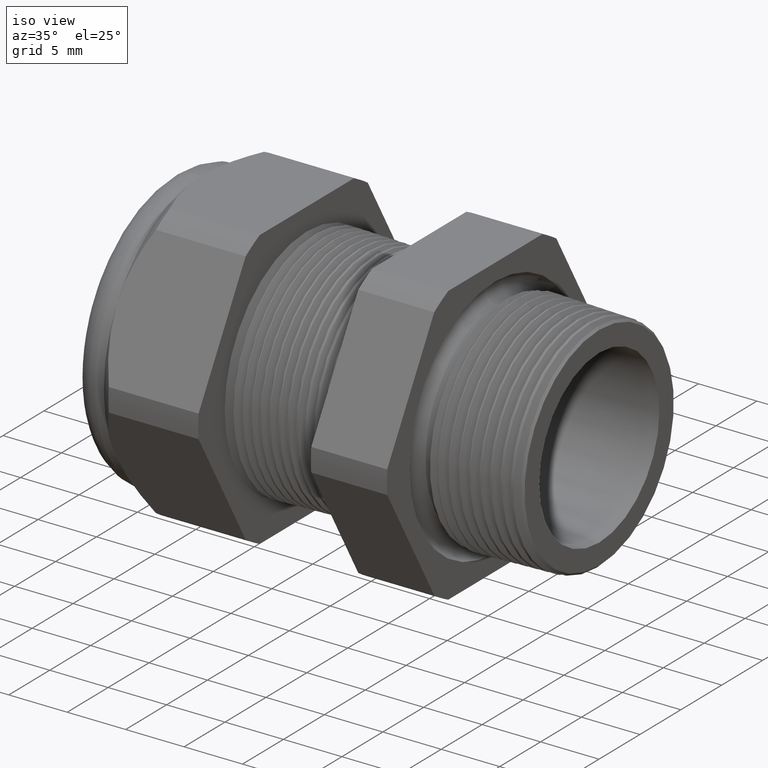
[diagram: clean part render]
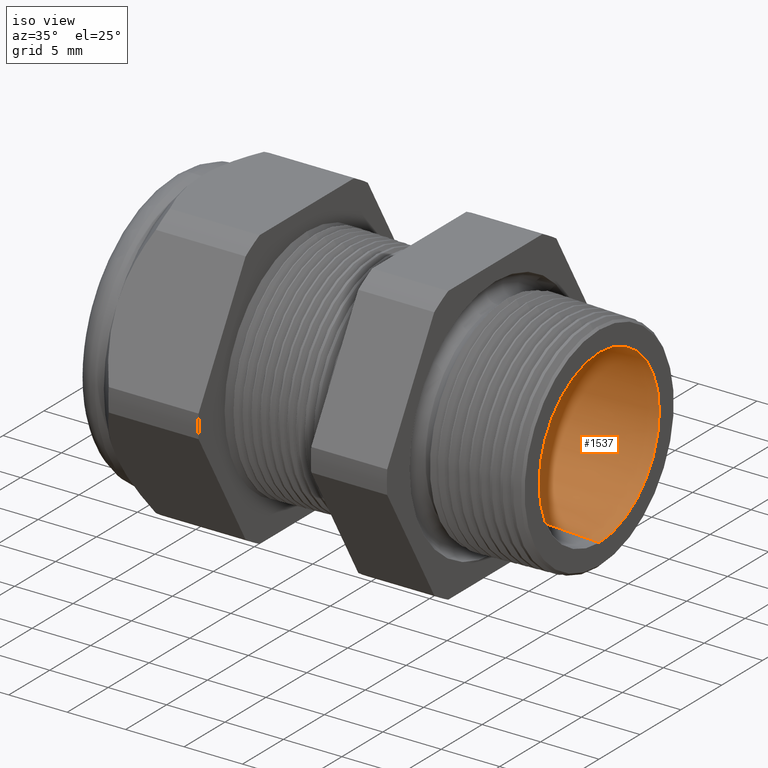
[diagram: same view with one face highlighted and labeled with its STEP entity id]
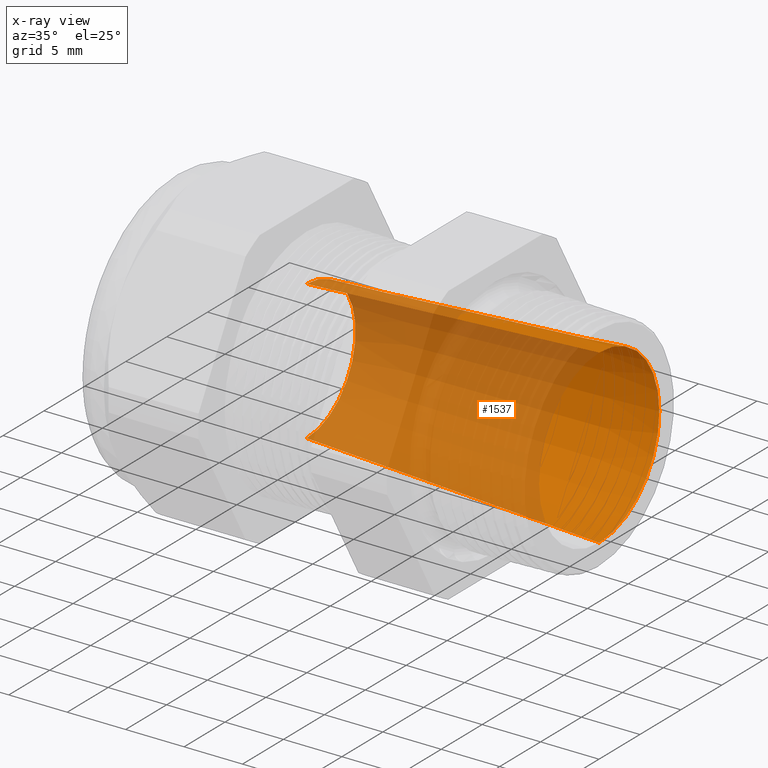
[diagram: x-ray of the same camera — body ghosted, the highlighted face saturated]
A machine part, iso view. The second image highlights one B-rep face of the part: STEP entity #1537.
The next image is the same camera in x-ray: the body ghosted, the highlighted face saturated — about 67% of this face is hidden behind the body in this view.
In plain terms, the highlighted conical surface has half-angle 3.148 deg.
Its self-contained STEP definition (entity closure, byte-faithful):
#979 = VERTEX_POINT ( 'NONE', #3498 ) ;
#980 = VERTEX_POINT ( 'NONE', #3497 ) ;
#982 = EDGE_CURVE ( 'NONE', #979, #983, #3496, .T. ) ;
#983 = VERTEX_POINT ( 'NONE', #3492 ) ;
#986 = VERTEX_POINT ( 'NONE', #3486 ) ;
#988 = EDGE_CURVE ( 'NONE', #980, #986, #3485, .T. ) ;
#1517 = ORIENTED_EDGE ( 'NONE', *, *, #1518, .T. ) ;
#1518 = EDGE_CURVE ( 'NONE', #986, #983, #4583, .T. ) ;
#1536 = EDGE_CURVE ( 'NONE', #980, #979, #4618, .T. ) ;
#1537 = ADVANCED_FACE ( 'NONE', ( #4614 ), #4613, .F. ) ;
#1538 = EDGE_LOOP ( 'NONE', ( #1539, #1540, #1541, #1517 ) ) ;
#1539 = ORIENTED_EDGE ( 'NONE', *, *, #982, .F. ) ;
#1540 = ORIENTED_EDGE ( 'NONE', *, *, #1536, .F. ) ;
#1541 = ORIENTED_EDGE ( 'NONE', *, *, #988, .T. ) ;
#3482 = DIRECTION ( 'NONE',  ( 0.9984911057575849300, 0.0000000000000000000, -0.05491367519111593100 ) ) ;
#3483 = VECTOR ( 'NONE', #3482, 39.37007874015748100 ) ;
#3484 = CARTESIAN_POINT ( 'NONE',  ( -0.9454330708661418100, 0.0000000000000000000, -0.2350000000000000100 ) ) ;
#3485 = LINE ( 'NONE', #3484, #3483 ) ;
#3486 = CARTESIAN_POINT ( 'NONE',  ( 0.03999999999999997300, 0.0000000000000000000, -0.2891955268946231900 ) ) ;
#3492 = CARTESIAN_POINT ( 'NONE',  ( 0.03999999999999997300, 3.541623763392326200E-017, 0.2891955268946231900 ) ) ;
#3493 = DIRECTION ( 'NONE',  ( 0.9984911057575849300, 6.724985655221754600E-018, 0.05491367519111593100 ) ) ;
#3494 = VECTOR ( 'NONE', #3493, 39.37007874015748100 ) ;
#3495 = CARTESIAN_POINT ( 'NONE',  ( -0.9454330708661418100, 2.877919977996280400E-017, 0.2350000000000000100 ) ) ;
#3496 = LINE ( 'NONE', #3495, #3494 ) ;
#3497 = CARTESIAN_POINT ( 'NONE',  ( -0.9454330708661418100, 0.0000000000000000000, -0.2350000000000000100 ) ) ;
#3498 = CARTESIAN_POINT ( 'NONE',  ( -0.9454330708661418100, 2.877919977996280400E-017, 0.2350000000000000100 ) ) ;
#4579 = DIRECTION ( 'NONE',  ( 0.0000000000000000000, 0.0000000000000000000, -1.000000000000000000 ) ) ;
#4580 = DIRECTION ( 'NONE',  ( 1.000000000000000000, 0.0000000000000000000, 0.0000000000000000000 ) ) ;
#4581 = CARTESIAN_POINT ( 'NONE',  ( 0.03999999999999997300, 0.0000000000000000000, 0.0000000000000000000 ) ) ;
#4582 = AXIS2_PLACEMENT_3D ( 'NONE', #4581, #4580, #4579 ) ;
#4583 = CIRCLE ( 'NONE', #4582, 0.2891955268946231900 ) ;
#4608 = DIRECTION ( 'NONE',  ( 0.0000000000000000000, 0.0000000000000000000, -1.000000000000000000 ) ) ;
#4609 = DIRECTION ( 'NONE',  ( 1.000000000000000000, 0.0000000000000000000, 0.0000000000000000000 ) ) ;
#4610 = CARTESIAN_POINT ( 'NONE',  ( -0.9454330708661418100, 0.0000000000000000000, 0.0000000000000000000 ) ) ;
#4611 = AXIS2_PLACEMENT_3D ( 'NONE', #4610, #4609, #4608 ) ;
#4613 = CONICAL_SURFACE ( 'NONE', #4611, 0.2350000000000000100, 0.05494131151472639300 ) ;
#4614 = FACE_OUTER_BOUND ( 'NONE', #1538, .T. ) ;
#4615 = DIRECTION ( 'NONE',  ( 0.0000000000000000000, 0.0000000000000000000, -1.000000000000000000 ) ) ;
#4616 = DIRECTION ( 'NONE',  ( 1.000000000000000000, 0.0000000000000000000, 0.0000000000000000000 ) ) ;
#4617 = AXIS2_PLACEMENT_3D ( 'NONE', #4623, #4616, #4615 ) ;
#4618 = CIRCLE ( 'NONE', #4617, 0.2350000000000000100 ) ;
#4623 = CARTESIAN_POINT ( 'NONE',  ( -0.9454330708661418100, 0.0000000000000000000, 0.0000000000000000000 ) ) ;